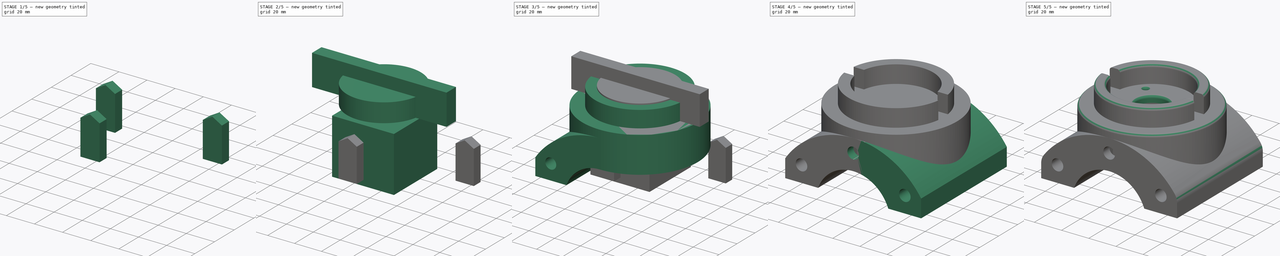
[diagram: build sequence overview — one tinted view per stage of 5, left to right]
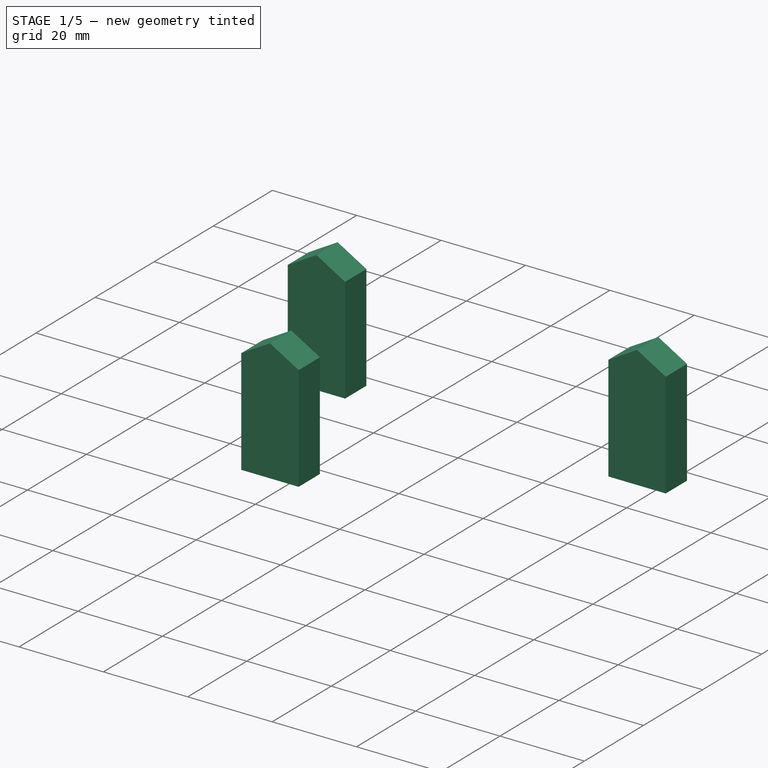
[diagram: stage 1 of 5 — iso view after this stage's code; geometry added in this stage tinted green]
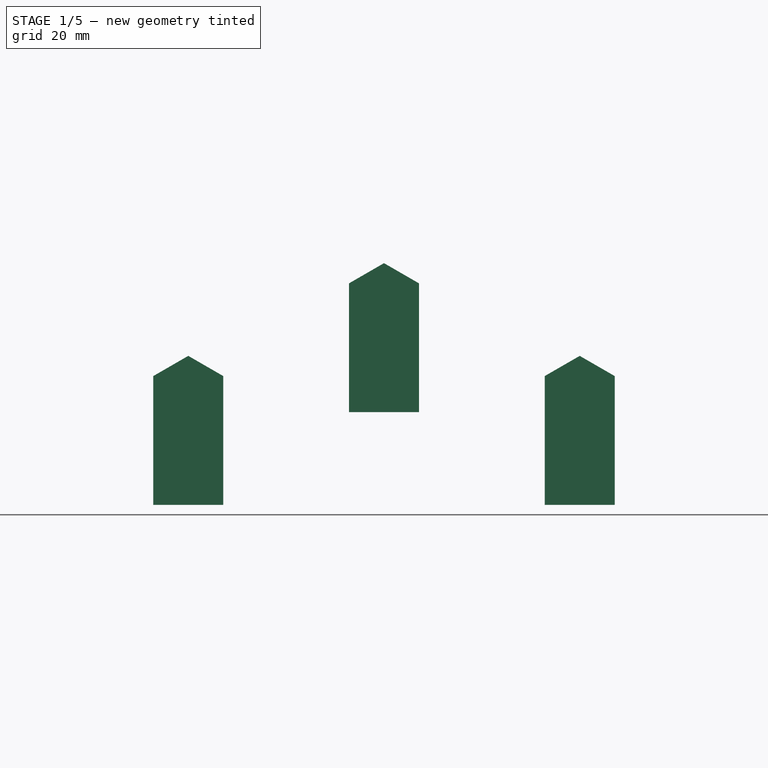
[diagram: stage 1 of 5 — front view after this stage's code; geometry added in this stage tinted green]
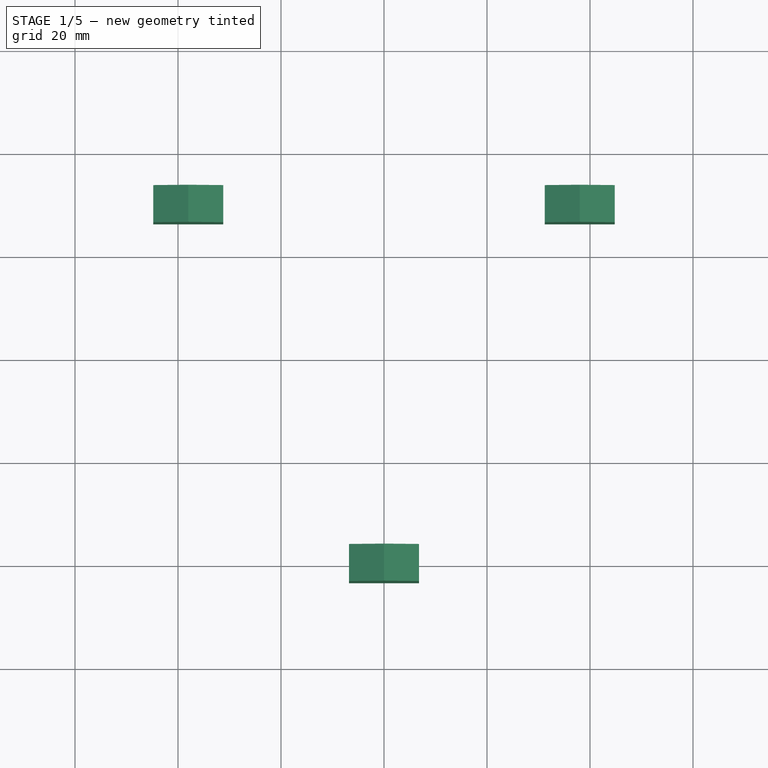
[diagram: stage 1 of 5 — top view after this stage's code; geometry added in this stage tinted green]
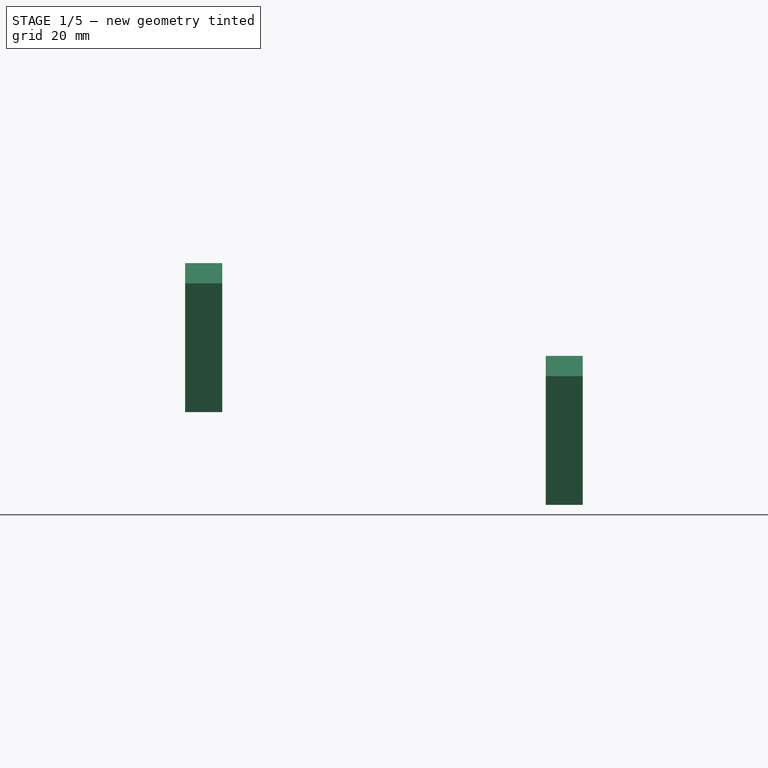
[diagram: stage 1 of 5 — right view after this stage's code; geometry added in this stage tinted green]
FCSTD DOCUMENT  (FreeCAD 0.14R3700 (Git))
Label: motor-holderv2.2
License: CC-BY 3.0
LicenseURL: http://creativecommons.org/licenses/by/3.0/
objects: Sketcher::SketchObject×9, PartDesign::Pad×4, Part::Cylinder×3, PartDesign::Pocket×3, Part::Box×2, Part::MultiFuse×2, PartDesign::Mirrored×1, Part::Cut×1, Part::Fillet×1, Part::Feature×1
note: 34 computed .brp shape members not serialized (recipe doc carries the construction recipe); baked Part::Feature solids carry a one-line shape summary decoded from their .brp

FEATURE [Sketcher::SketchObject] Sketch002  label="Sketch hueco M8"
  Placement = pos=(-38,-6.4,19.85) rot=(1,0,0;1.5708rad)
  sketch-geometry (5):
    g0: LineSegment StartX=-6.8 StartY=-3.92598 StartZ=0 EndX=0 EndY=0 EndZ=0
    g1: LineSegment StartX=0 StartY=0 StartZ=0 EndX=6.8 EndY=-3.92598 EndZ=0
    g2: LineSegment StartX=6.8 StartY=-3.92598 StartZ=0 EndX=6.8 EndY=-28.926 EndZ=0
    g3: LineSegment StartX=6.8 StartY=-28.926 StartZ=0 EndX=-6.8 EndY=-28.926 EndZ=0
    g4: LineSegment StartX=-6.8 StartY=-28.926 StartZ=0 EndX=-6.8 EndY=-3.92598 EndZ=0
  constraints (14):
    c: Coincident(g0,g1)
    c: Coincident(g1,g2)
    c: Vertical(g2)
    c: Coincident(g2,g3)
    c: Horizontal(g3)
    c: Coincident(g3,g4)
    c: Coincident(g4,g0)
    c: Vertical(g4)
    c: PointOnObject(g0,g-2)
    c: Symmetric(g0,g1,g-2)
    c: Angle(g0,g1) = 2.0944
    c: PointOnObject(g0,g-1)
    c: DistanceX(g3) = -13.6
    c: DistanceY(g2) = -25
FEATURE [PartDesign::Pad] Pad001  label="Hueco M8_der"
  Length = 7.2
  Length2 = 100
  Placement = pos=(-38,-6.4,19.85) rot=(1,0,0;1.5708rad)
  Sketch = -> Sketch002
  Type = 0
FEATURE [Sketcher::SketchObject] Sketch006  label="Sketch hueco M010"
  Placement = pos=(-38,-6.4,19.85) rot=(1,0,0;1.5708rad)
  sketch-geometry (5):
    g0: LineSegment StartX=-6.8 StartY=-3.92598 StartZ=0 EndX=0 EndY=0 EndZ=0
    g1: LineSegment StartX=0 StartY=0 StartZ=0 EndX=6.8 EndY=-3.92598 EndZ=0
    g2: LineSegment StartX=6.8 StartY=-3.92598 StartZ=0 EndX=6.8 EndY=-28.926 EndZ=0
    g3: LineSegment StartX=6.8 StartY=-28.926 StartZ=0 EndX=-6.8 EndY=-28.926 EndZ=0
    g4: LineSegment StartX=-6.8 StartY=-28.926 StartZ=0 EndX=-6.8 EndY=-3.92598 EndZ=0
  constraints (14):
    c: Coincident(g0,g1)
    c: Coincident(g1,g2)
    c: Vertical(g2)
    c: Coincident(g2,g3)
    c: Horizontal(g3)
    c: Coincident(g3,g4)
    c: Coincident(g4,g0)
    c: Vertical(g4)
    c: PointOnObject(g0,g-2)
    c: Symmetric(g0,g1,g-2)
    c: Angle(g0,g1) = 2.0944
    c: PointOnObject(g0,g-1)
    c: DistanceX(g3) = -13.6
    c: DistanceY(g2) = -25
FEATURE [Sketcher::SketchObject] Sketch005  label="Sketch hueco M009"
  Placement = pos=(-38,-6.4,19.85) rot=(1,0,0;1.5708rad)
  sketch-geometry (5):
    g0: LineSegment StartX=-6.8 StartY=-3.92598 StartZ=0 EndX=0 EndY=0 EndZ=0
    g1: LineSegment StartX=0 StartY=0 StartZ=0 EndX=6.8 EndY=-3.92598 EndZ=0
    g2: LineSegment StartX=6.8 StartY=-3.92598 StartZ=0 EndX=6.8 EndY=-28.926 EndZ=0
    g3: LineSegment StartX=6.8 StartY=-28.926 StartZ=0 EndX=-6.8 EndY=-28.926 EndZ=0
    g4: LineSegment StartX=-6.8 StartY=-28.926 StartZ=0 EndX=-6.8 EndY=-3.92598 EndZ=0
  constraints (14):
    c: Coincident(g0,g1)
    c: Coincident(g1,g2)
    c: Vertical(g2)
    c: Coincident(g2,g3)
    c: Horizontal(g3)
    c: Coincident(g3,g4)
    c: Coincident(g4,g0)
    c: Vertical(g4)
    c: PointOnObject(g0,g-2)
    c: Symmetric(g0,g1,g-2)
    c: Angle(g0,g1) = 2.0944
    c: PointOnObject(g0,g-1)
    c: DistanceX(g3) = -13.6
    c: DistanceY(g2) = -25
FEATURE [Sketcher::SketchObject] Sketch002001  label="Sketch hueco M011"
  Placement = pos=(38,-6.4,19.85) rot=(1,0,0;1.5708rad)
  sketch-geometry (5):
    g0: LineSegment StartX=-6.8 StartY=-3.92598 StartZ=0 EndX=0 EndY=0 EndZ=0
    g1: LineSegment StartX=0 StartY=0 StartZ=0 EndX=6.8 EndY=-3.92598 EndZ=0
    g2: LineSegment StartX=6.8 StartY=-3.92598 StartZ=0 EndX=6.8 EndY=-28.926 EndZ=0
    g3: LineSegment StartX=6.8 StartY=-28.926 StartZ=0 EndX=-6.8 EndY=-28.926 EndZ=0
    g4: LineSegment StartX=-6.8 StartY=-28.926 StartZ=0 EndX=-6.8 EndY=-3.92598 EndZ=0
  constraints (14):
    c: Coincident(g0,g1)
    c: Coincident(g1,g2)
    c: Vertical(g2)
    c: Coincident(g2,g3)
    c: Horizontal(g3)
    c: Coincident(g3,g4)
    c: Coincident(g4,g0)
    c: Vertical(g4)
    c: PointOnObject(g0,g-2)
    c: Symmetric(g0,g1,g-2)
    c: Angle(g0,g1) = 2.0944
    c: PointOnObject(g0,g-1)
    c: DistanceX(g3) = -13.6
    c: DistanceY(g2) = -25
FEATURE [PartDesign::Pad] Pad001001  label="Hueco M8_izq"
  Length = 7.2
  Length2 = 100
  Placement = pos=(38,-6.4,19.85) rot=(1,0,0;1.5708rad)
  Sketch = -> Sketch002001
  Type = 0
FEATURE [Sketcher::SketchObject] Sketch002002  label="Sketch hueco M012"
  Placement = pos=(0,-76.4,37.85) rot=(1,0,0;1.5708rad)
  sketch-geometry (5):
    g0: LineSegment StartX=-6.8 StartY=-3.92598 StartZ=0 EndX=0 EndY=0 EndZ=0
    g1: LineSegment StartX=0 StartY=0 StartZ=0 EndX=6.8 EndY=-3.92598 EndZ=0
    g2: LineSegment StartX=6.8 StartY=-3.92598 StartZ=0 EndX=6.8 EndY=-28.926 EndZ=0
    g3: LineSegment StartX=6.8 StartY=-28.926 StartZ=0 EndX=-6.8 EndY=-28.926 EndZ=0
    g4: LineSegment StartX=-6.8 StartY=-28.926 StartZ=0 EndX=-6.8 EndY=-3.92598 EndZ=0
  constraints (14):
    c: Coincident(g0,g1)
    c: Coincident(g1,g2)
    c: Vertical(g2)
    c: Coincident(g2,g3)
    c: Horizontal(g3)
    c: Coincident(g3,g4)
    c: Coincident(g4,g0)
    c: Vertical(g4)
    c: PointOnObject(g0,g-2)
    c: Symmetric(g0,g1,g-2)
    c: Angle(g0,g1) = 2.0944
    c: PointOnObject(g0,g-1)
    c: DistanceX(g3) = -13.6
    c: DistanceY(g2) = -25
FEATURE [PartDesign::Pad] Pad001002  label="Hueco M8_cent."
  Length = 7.2
  Length2 = 100
  Placement = pos=(0,-76.4,37.85) rot=(1,0,0;1.5708rad)
  Sketch = -> Sketch002002
  Type = 0
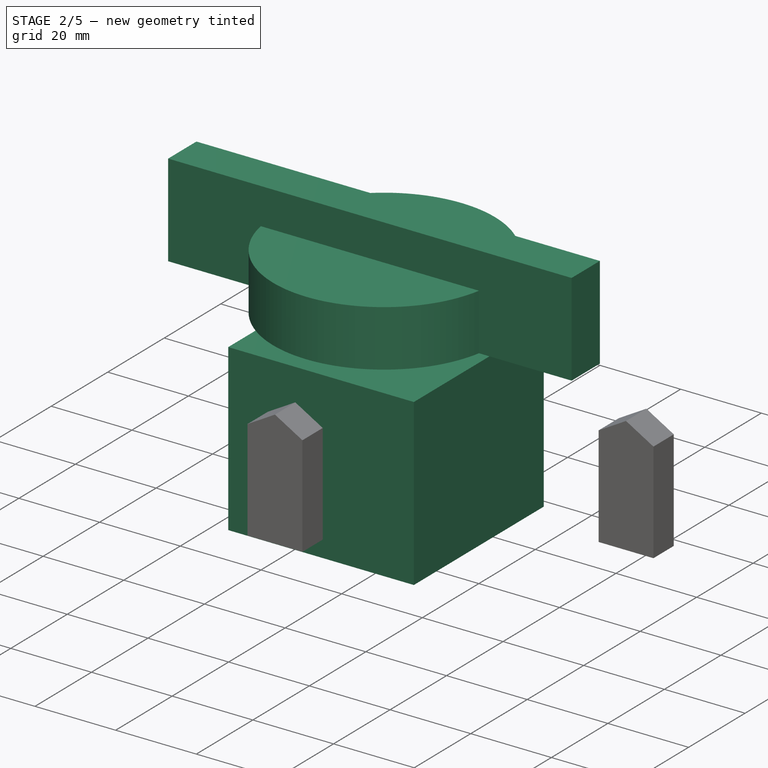
[diagram: stage 2 of 5 — iso view after this stage's code; geometry added in this stage tinted green]
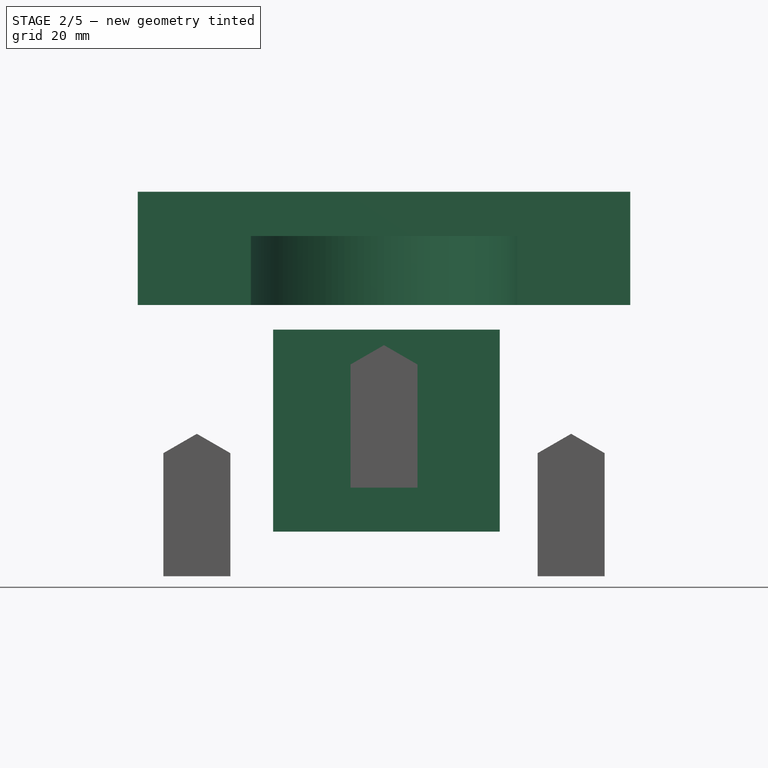
[diagram: stage 2 of 5 — front view after this stage's code; geometry added in this stage tinted green]
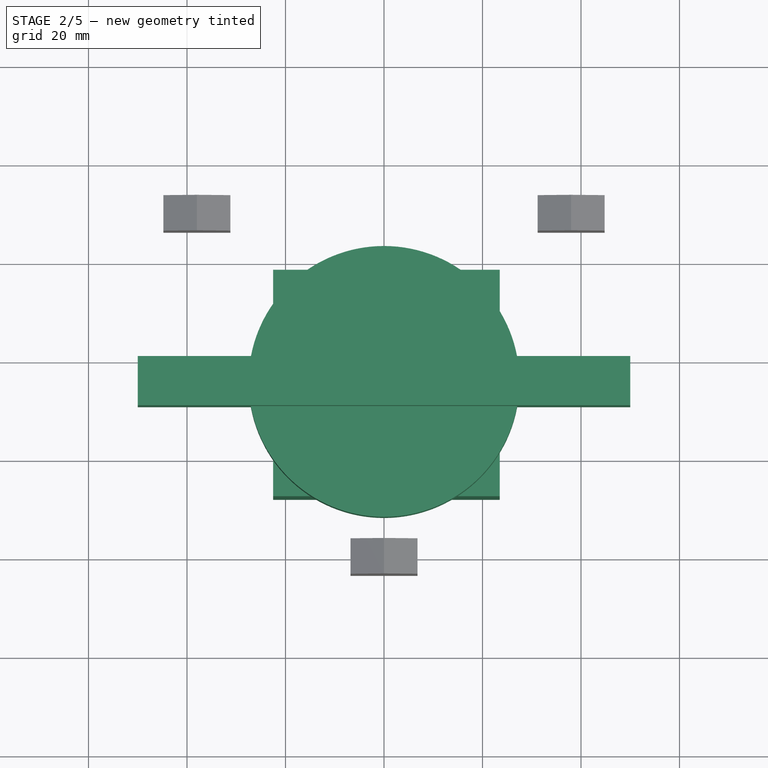
[diagram: stage 2 of 5 — top view after this stage's code; geometry added in this stage tinted green]
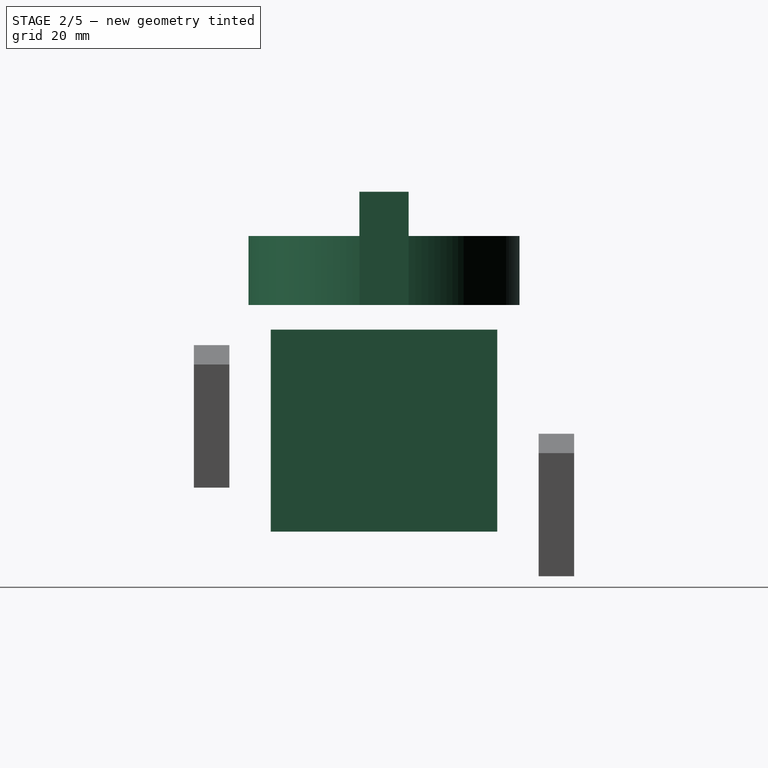
[diagram: stage 2 of 5 — right view after this stage's code; geometry added in this stage tinted green]
FEATURE [Part::Cylinder] Cylinder002  label="Hueco_cyl_superior"
  Angle = 360
  Height = 14
  Placement = pos=(0,-45,46) rot=(0,0,1;0rad)
  Radius = 27.5
FEATURE [Part::Box] Box  label="Ranura superior"
  Height = 23
  Length = 100
  Placement = pos=(-50,-50,46) rot=(0,0,1;0rad)
  Width = 10
FEATURE [Part::Box] Box001  label="Vaciado inferior"
  Height = 41
  Length = 46
  Placement = pos=(-22.5,-68,0) rot=(0,0,1;0rad)
  Width = 46
FEATURE [Part::MultiFuse] Fusion001  label="Huecos"
  Shapes = -> [Cylinder002,Box,Box001,Pad001001,Pad001002,Pad001]
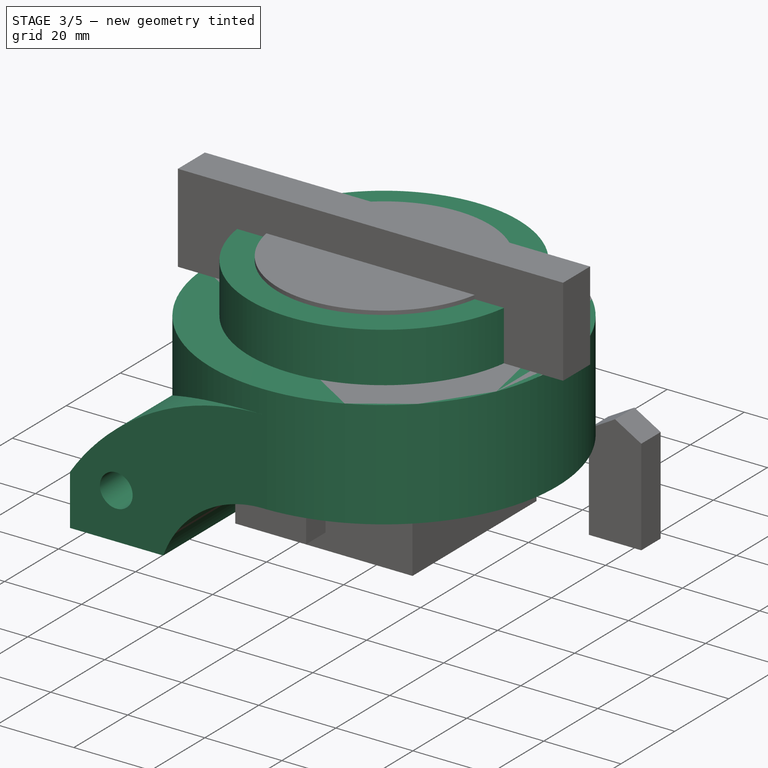
[diagram: stage 3 of 5 — iso view after this stage's code; geometry added in this stage tinted green]
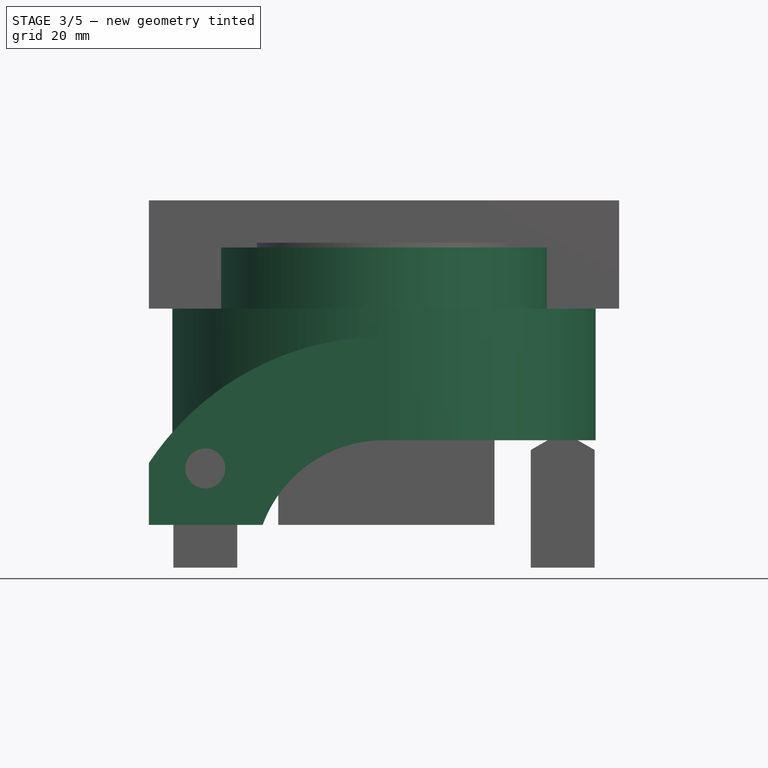
[diagram: stage 3 of 5 — front view after this stage's code; geometry added in this stage tinted green]
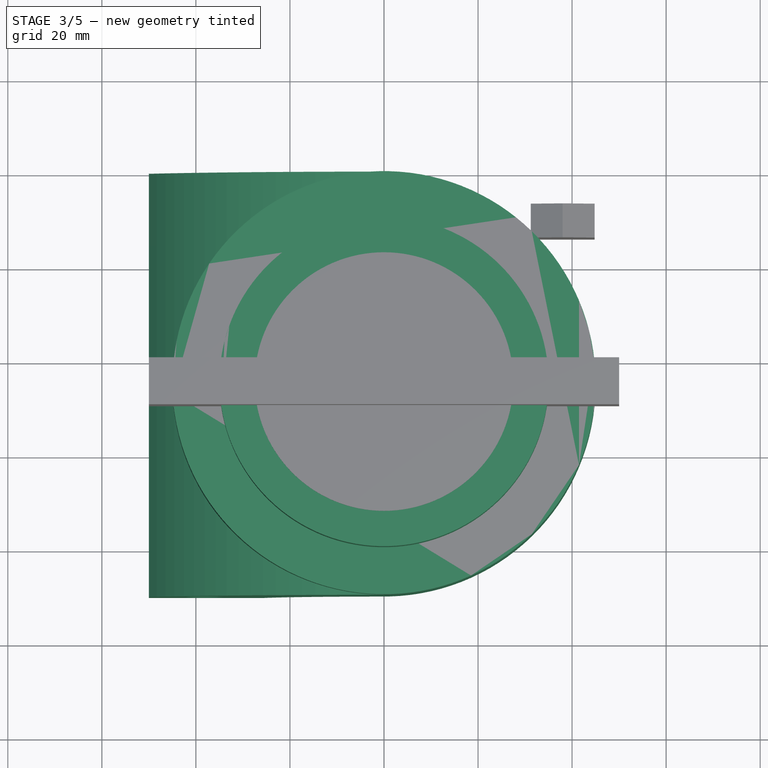
[diagram: stage 3 of 5 — top view after this stage's code; geometry added in this stage tinted green]
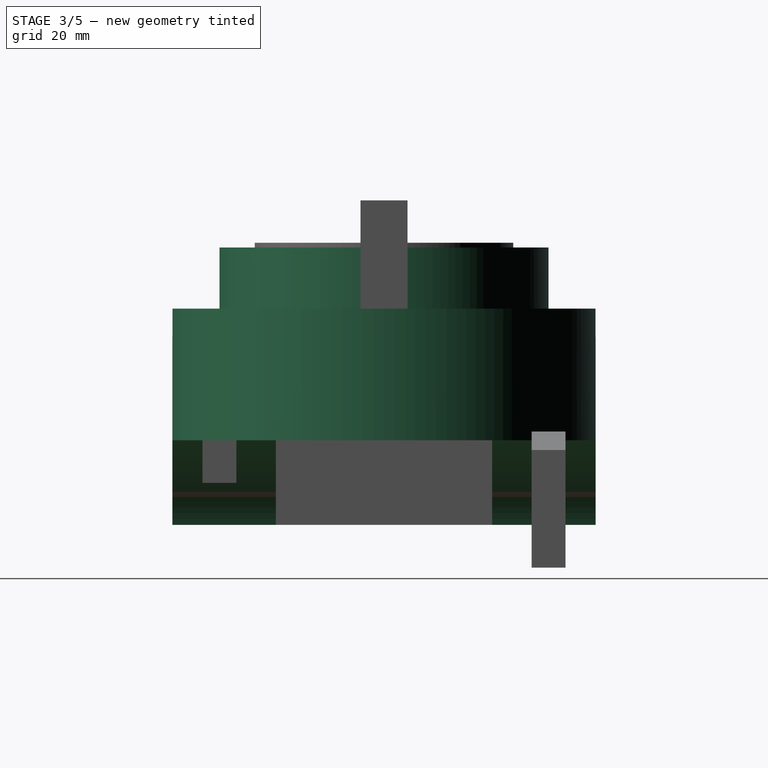
[diagram: stage 3 of 5 — right view after this stage's code; geometry added in this stage tinted green]
FEATURE [Sketcher::SketchObject] Sketch  label="Sketch_principal"
  Placement = pos=(0,0,0) rot=(1,0,0;1.5708rad)
  sketch-geometry (6):
    g0: ArcOfCircle CenterX=0 CenterY=-20 CenterZ=0 NormalX=0 NormalY=0 NormalZ=1 Radius=60 StartAngle=1.5708 EndAngle=2.55591
    g1: LineSegment StartX=-50 StartY=0 StartZ=0 EndX=-25.807 EndY=0 EndZ=0
    g2: LineSegment StartX=-50 StartY=13.1662 StartZ=0 EndX=-50 EndY=0 EndZ=0
    g3: ArcOfCircle CenterX=0 CenterY=-9.5 CenterZ=0 NormalX=0 NormalY=0 NormalZ=1 Radius=27.5 StartAngle=1.5708 EndAngle=2.78887
    g4: Circle CenterX=-38 CenterY=12 CenterZ=0 NormalX=0 NormalY=0 NormalZ=1 Radius=4.25
    g5: LineSegment StartX=0 StartY=40 StartZ=0 EndX=0 EndY=18 EndZ=0
  constraints (20):
    c: PointOnObject(g1,g-1)
    c: PointOnObject(g0,g-2)
    c: PointOnObject(g0,g-2)
    c: Horizontal(g1)
    c: Vertical(g2)
    c: PointOnObject(g3,g-2)
    c: PointOnObject(g3,g-2)
    c: Coincident(g1,g3)
    c: DistanceY(g-1,g3) = 18
    c: Coincident(g2,g0)
    c: Coincident(g2,g1)
    c: Radius(g3) = 27.5
    c: Radius(g0) = 60
    c: DistanceY(g0,g3) = -22
    c: Coincident(g5,g3)
    c: Radius(g4) = 4.25
    c: Distance(g4,g1) = 12
    c: Coincident(g5,g0)
    c: DistanceX(g-1,g1) = -50
    c: DistanceX(g-1,g4) = -38
FEATURE [PartDesign::Pad] Pad  label="Extrusion principal"
  Length = 90
  Length2 = 100
  Placement = pos=(0,0,0) rot=(1,0,0;1.5708rad)
  Sketch = -> Sketch
  Type = 0
FEATURE [Part::Cylinder] Cylinder  label="Cyl_sup_grande"
  Angle = 360
  Height = 28
  Placement = pos=(0,-45,18) rot=(0,0,1;0rad)
  Radius = 45
FEATURE [Part::Cylinder] Cylinder001  label="Cyl_sup_pequeño"
  Angle = 360
  Height = 13
  Placement = pos=(0,-45,46) rot=(0,0,1;0rad)
  Radius = 35
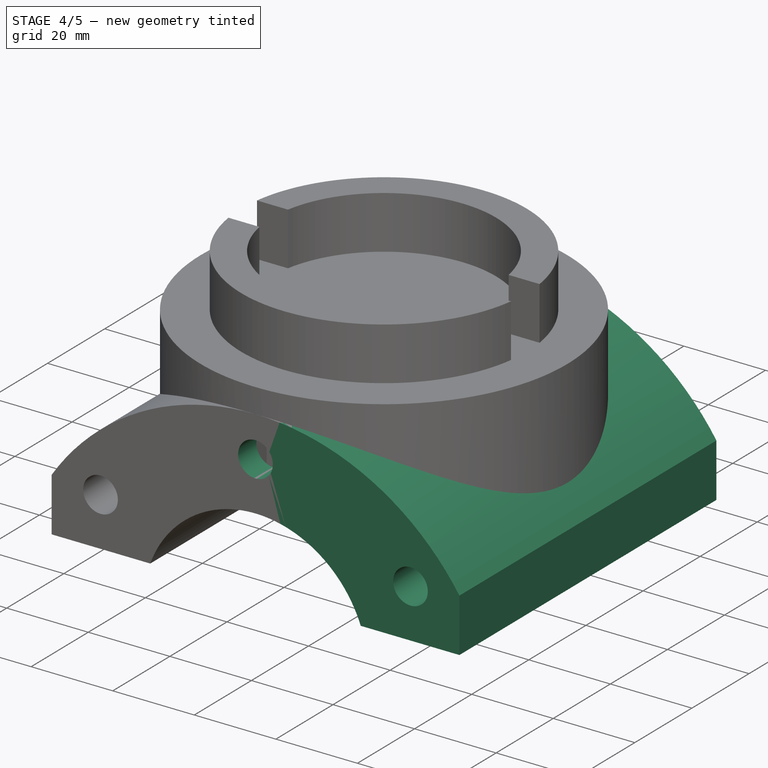
[diagram: stage 4 of 5 — iso view after this stage's code; geometry added in this stage tinted green]
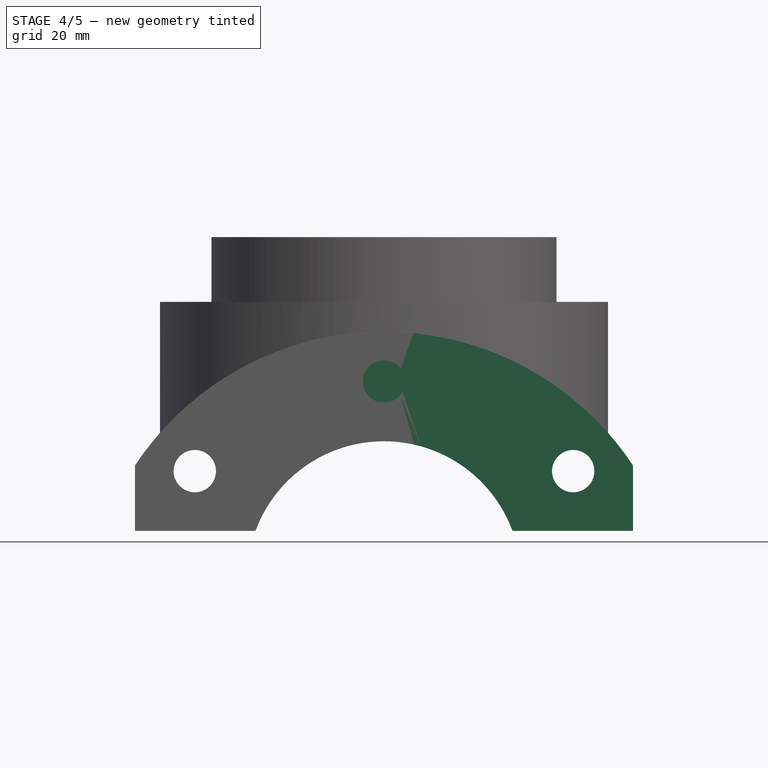
[diagram: stage 4 of 5 — front view after this stage's code; geometry added in this stage tinted green]
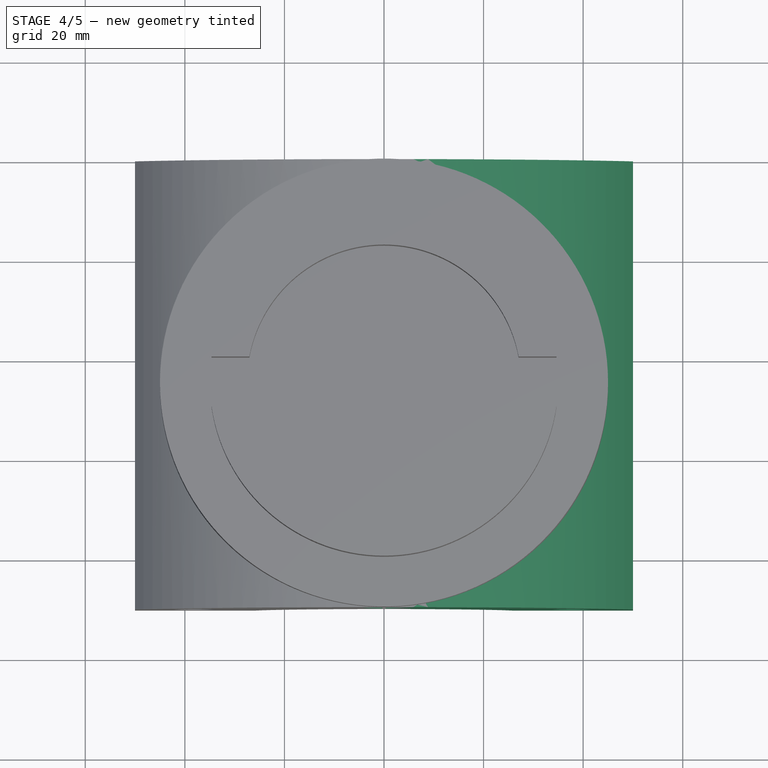
[diagram: stage 4 of 5 — top view after this stage's code; geometry added in this stage tinted green]
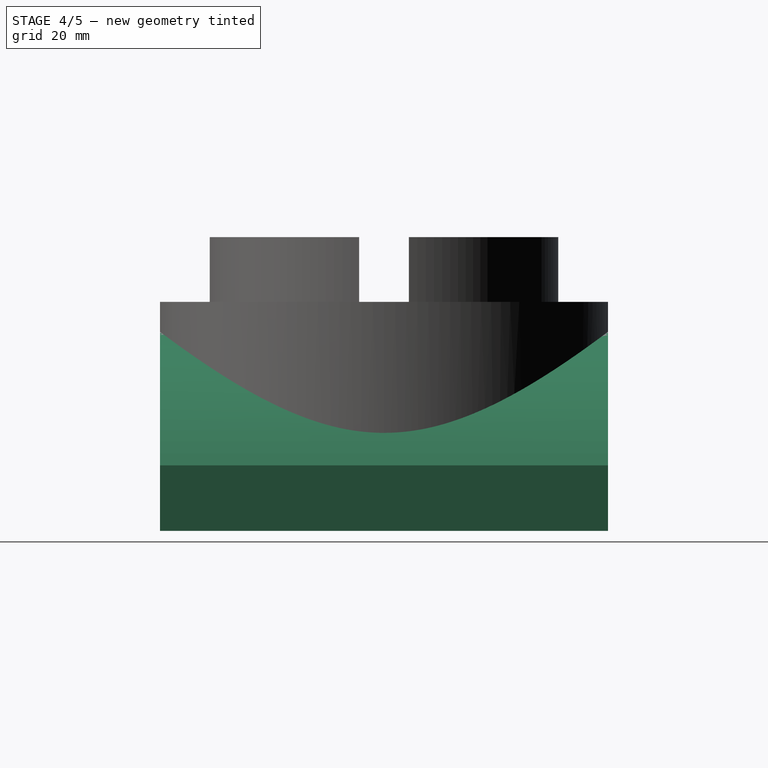
[diagram: stage 4 of 5 — right view after this stage's code; geometry added in this stage tinted green]
FEATURE [PartDesign::Mirrored] Mirrored  label="Principal espejo"
  MirrorPlane = -> Sketch [V_Axis]
  Originals = -> [Pad]
  Placement = pos=(0,0,0) rot=(1,0,0;1.5708rad)
FEATURE [Part::MultiFuse] Fusion
  Shapes = -> [Mirrored,Cylinder001,Cylinder]
FEATURE [Part::Cut] Cut  label="Corte de huecos"
  Base = -> Fusion
  Tool = -> Fusion001
FEATURE [Sketcher::SketchObject] Sketch002003  label="sketch M8 central"
  Placement = pos=(0,-90,0) rot=(1,0,0;1.5708rad)
  Support = -> Cut [Face5]
  sketch-geometry (1):
    g0: Circle CenterX=0 CenterY=30 CenterZ=0 NormalX=0 NormalY=0 NormalZ=1 Radius=4.25
  constraints (3):
    c: Radius(g0) = 4.25
    c: PointOnObject(g0,g-2)
    c: DistanceY(g-1,g0) = 30
FEATURE [PartDesign::Pocket] Pocket  label="Agujero M8 central"
  Length = 20
  Sketch = -> Sketch002003
  Type = 0
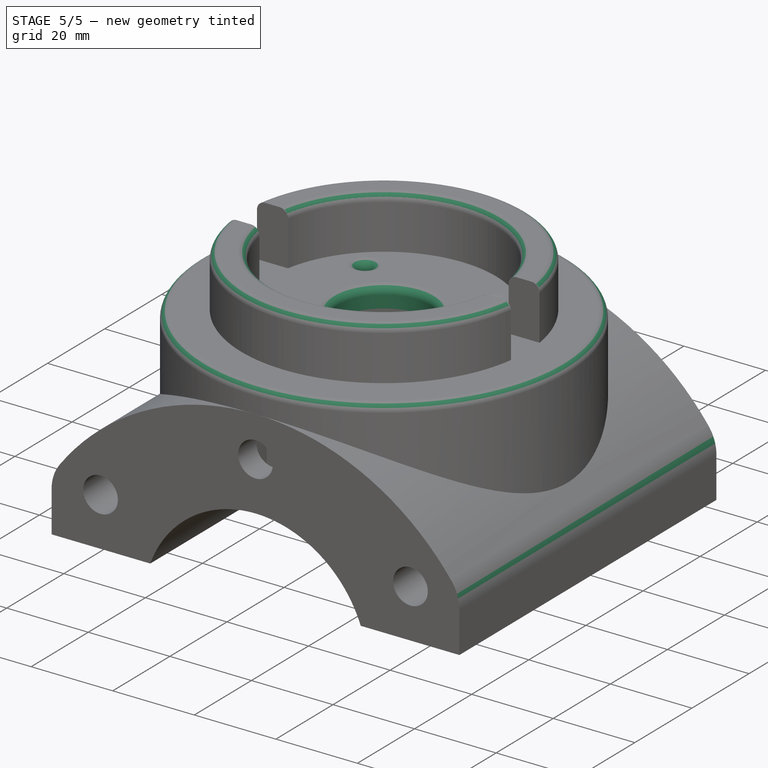
[diagram: stage 5 of 5 — iso view after this stage's code; geometry added in this stage tinted green]
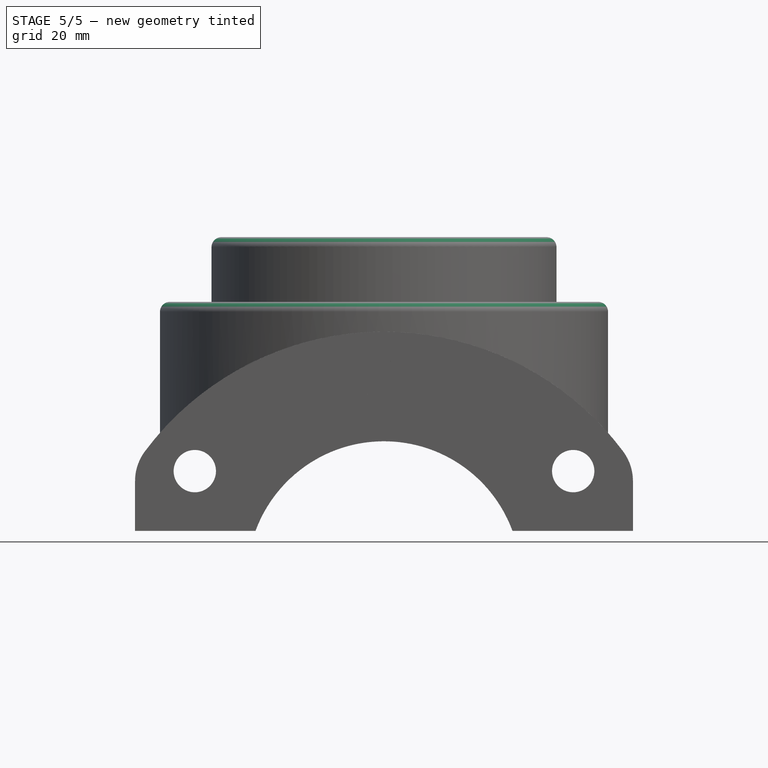
[diagram: stage 5 of 5 — front view after this stage's code; geometry added in this stage tinted green]
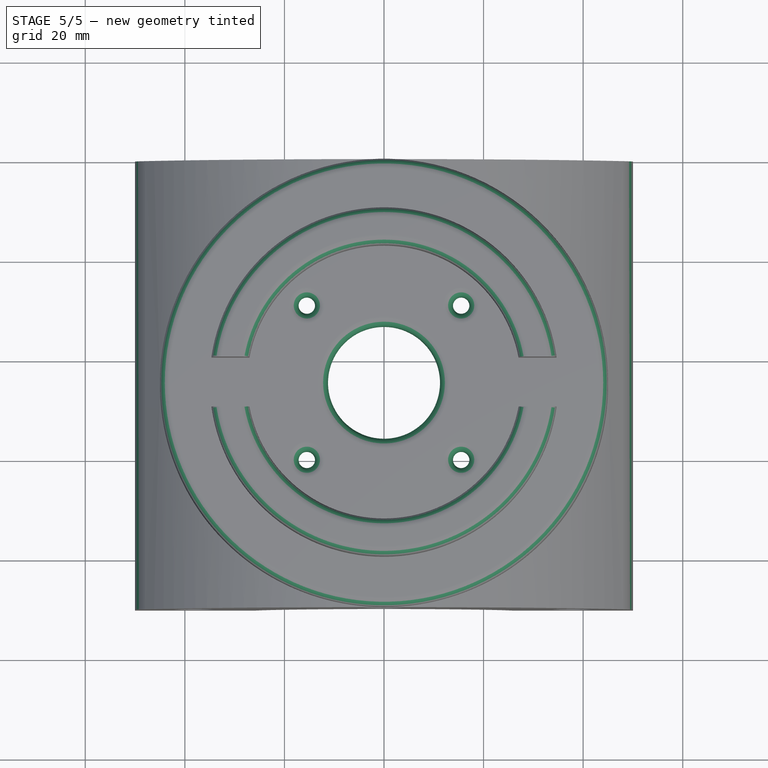
[diagram: stage 5 of 5 — top view after this stage's code; geometry added in this stage tinted green]
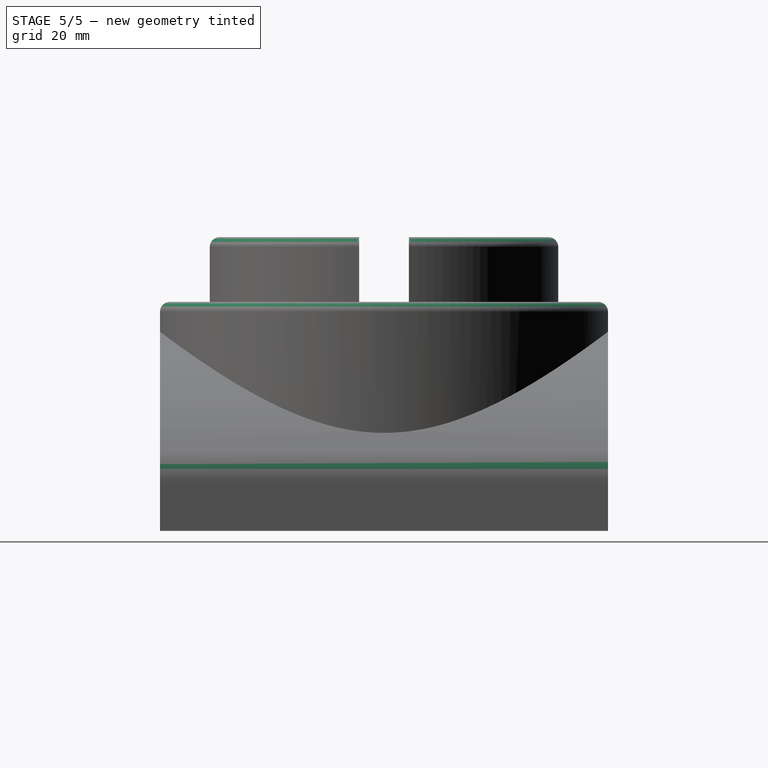
[diagram: stage 5 of 5 — right view after this stage's code; geometry added in this stage tinted green]
FEATURE [Sketcher::SketchObject] Sketch002004  label="Sketch NEMA018"
  Placement = pos=(0,0,46) rot=(0,0,1;0rad)
  Support = -> Pocket [Face20]
  sketch-geometry (6):
    g0: Circle CenterX=-15.5 CenterY=-29.5 CenterZ=0 NormalX=0 NormalY=0 NormalZ=1 Radius=1.65
    g1: LineSegment [constr] StartX=-50 StartY=-45 StartZ=0 EndX=50 EndY=-45 EndZ=0
    g2: Circle CenterX=15.5 CenterY=-29.5 CenterZ=0 NormalX=0 NormalY=0 NormalZ=1 Radius=1.65
    g3: Circle CenterX=15.5 CenterY=-60.5 CenterZ=0 NormalX=0 NormalY=0 NormalZ=1 Radius=1.65
    g4: Circle CenterX=-15.5 CenterY=-60.5 CenterZ=0 NormalX=0 NormalY=0 NormalZ=1 Radius=1.65
    g5: Circle CenterX=0 CenterY=-45 CenterZ=0 NormalX=0 NormalY=0 NormalZ=1 Radius=11.25
  constraints (16):
    c: Horizontal(g1)
    c: DistanceY(g-1,g1) = -45
    c: Equal(g0,g2)
    c: Equal(g0,g3)
    c: Equal(g0,g4)
    c: Symmetric(g0,g2,g-2)
    c: Symmetric(g0,g4,g1)
    c: Symmetric(g2,g3,g1)
    c: DistanceX(g0,g2) = 31
    c: DistanceY(g0,g4) = -31
    c: Radius(g0) = 1.65
    c: DistanceX(g-1,g1) = -50
    c: PointOnObject(g5,g1)
    c: PointOnObject(g5,g-2)
    c: Radius(g5) = 11.25
    c: Symmetric(g1,g1,g-2)
FEATURE [PartDesign::Pocket] Pocket001  label="Corte NEMA17"
  Length = 5
  Sketch = -> Sketch002004
  Type = 1
FEATURE [Sketcher::SketchObject] Sketch002005  label="Agujeritos 2mm"
  ExternalGeometry = -> [Pocket001]
  Placement = pos=(0,0,0) rot=(1,0,0;3.14159rad)
  Support = -> Pocket001 [Face3]
  sketch-geometry (4):
    g0: Circle CenterX=-38 CenterY=82 CenterZ=0 NormalX=0 NormalY=0 NormalZ=1 Radius=1
    g1: Circle CenterX=38 CenterY=82 CenterZ=0 NormalX=0 NormalY=0 NormalZ=1 Radius=1
    g2: Circle CenterX=38 CenterY=21.6 CenterZ=0 NormalX=0 NormalY=0 NormalZ=1 Radius=1
    g3: Circle CenterX=-38 CenterY=21.6 CenterZ=0 NormalX=0 NormalY=0 NormalZ=1 Radius=1
  constraints (10):
    c: Equal(g0,g1)
    c: Equal(g0,g2)
    c: Equal(g0,g3)
    c: Symmetric(g0,g1,g-2)
    c: Symmetric(g3,g2,g-2)
    c: Distance(g0,g-3) = 8
    c: Distance(g0,g-4) = 12
    c: Distance(g3,g-4) = 12
    c: DistanceY(g-1,g3) = 21.6
    c: Radius(g0) = 1
FEATURE [PartDesign::Pocket] Pocket002  label="Corte agujeros 1mm"
  Length = 1
  Sketch = -> Sketch002005
  Type = 0
FEATURE [Part::Fillet] Fillet  label="Redondeo"
  Base = -> Pocket002
  Edges = 12 edges: [Edge1 r=10,Edge32 r=2,Edge59 r=10,Edge76 r=2,Edge77 r=2,Edge78 r=2,Edge79 r=2,Edge80 r=2,Edge142 r=2,Edge144 r=2,Edge150 r=2,Edge152 r=2]
FEATURE [Part::Feature] Fillet001  label="Refinado"
  shape: bbox 100 x 97.42 x 59 mm, 76 faces (baked)
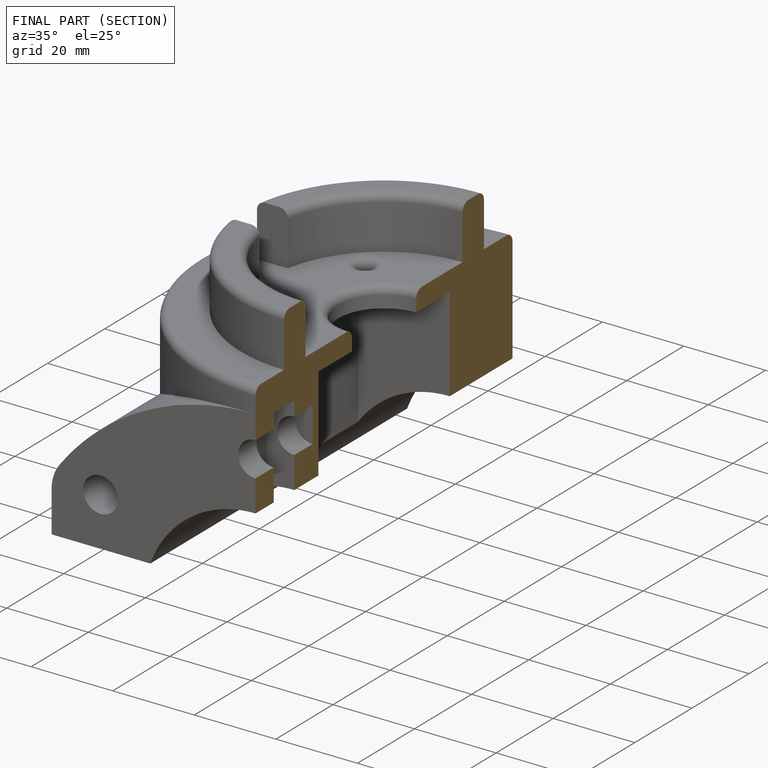
[diagram: finished part — half-section view (interior)]
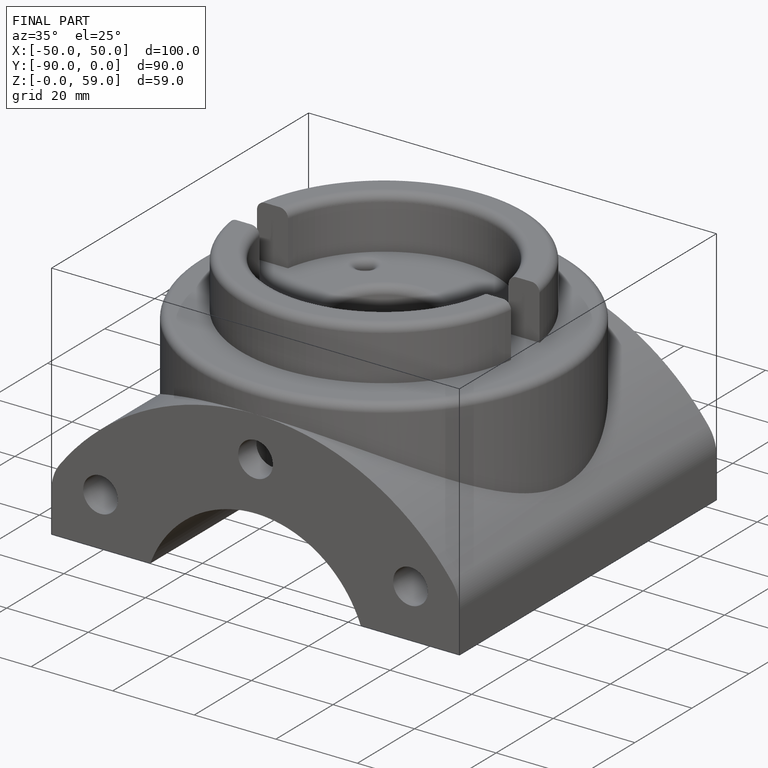
[diagram: finished part — iso view with bounding-box wireframe]
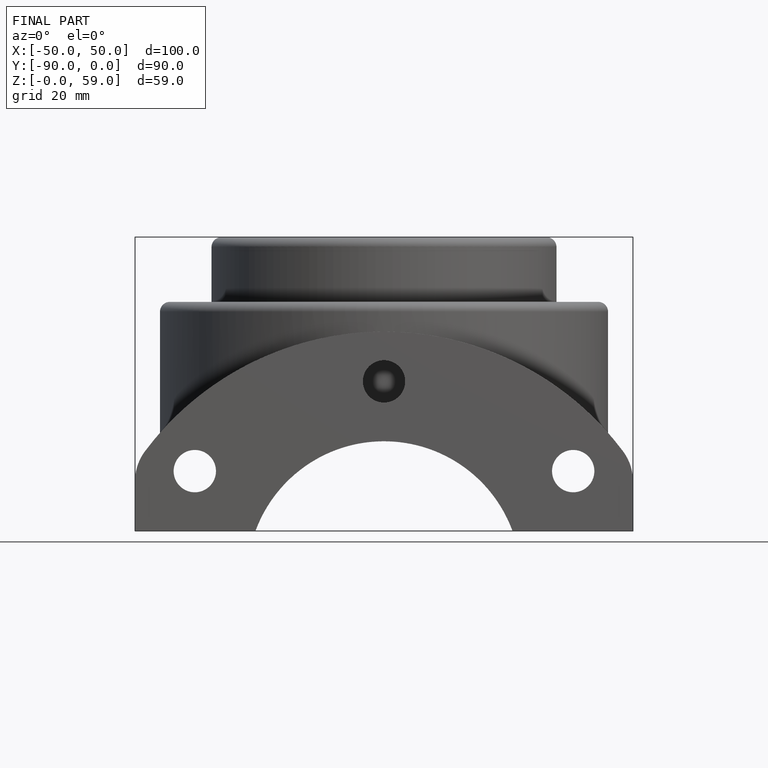
[diagram: finished part — front view with bounding-box wireframe]
